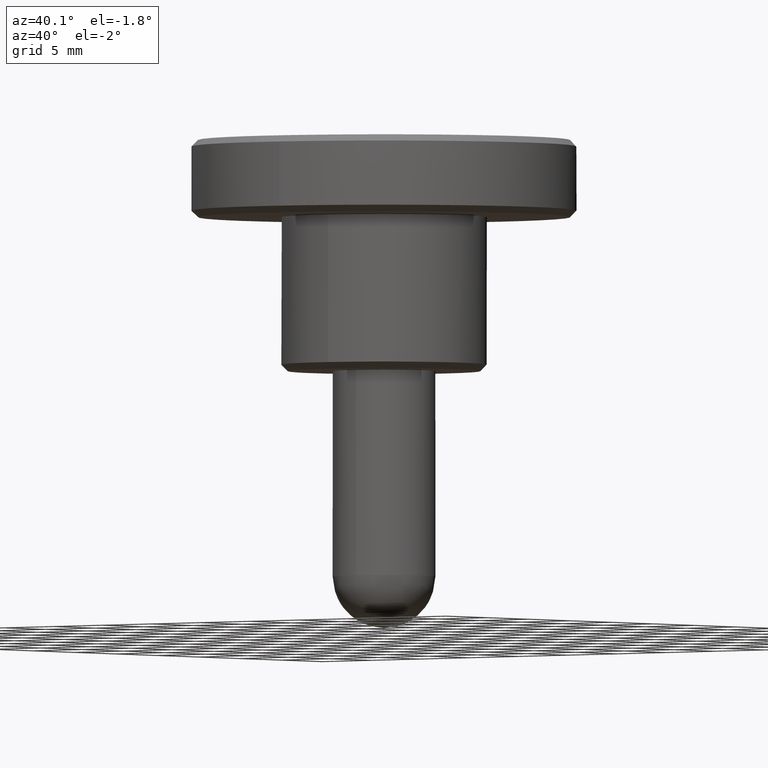
[diagram: clean part render]
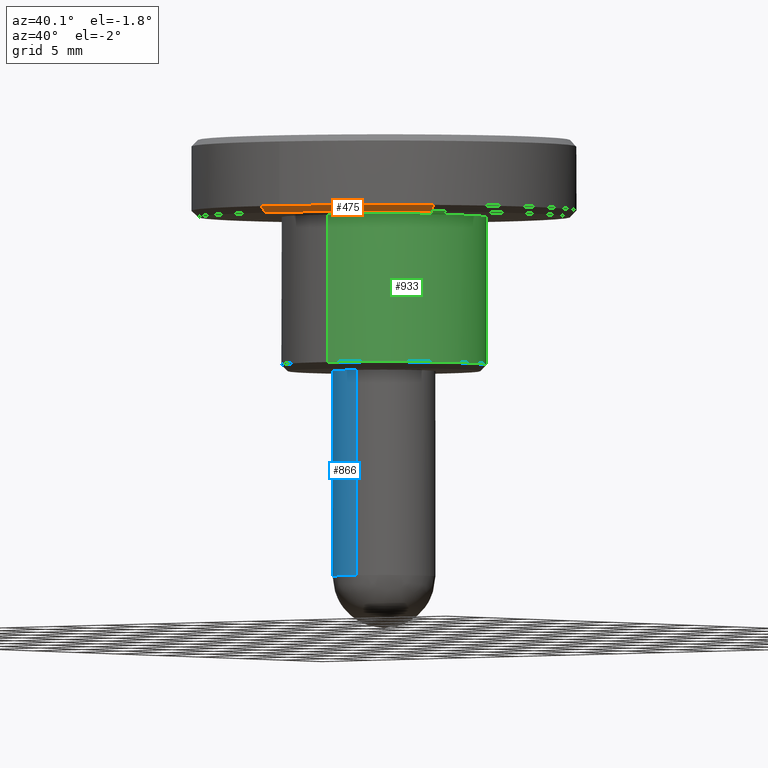
[diagram: same view with three faces highlighted in distinct colors, each labeled with its STEP entity id]
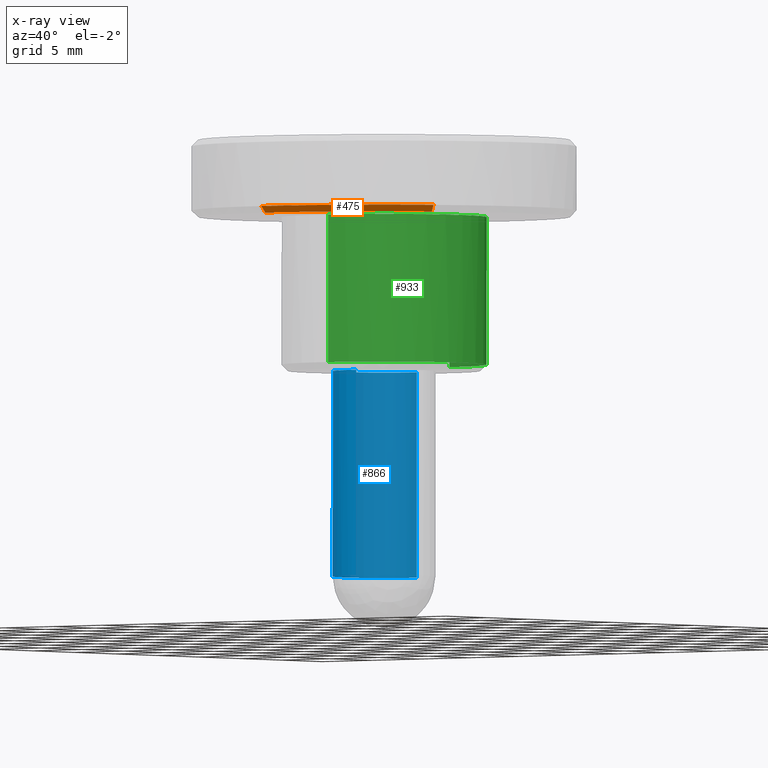
[diagram: x-ray of the same camera — body ghosted, the three highlighted faces saturated]
A machine part, auxiliary view with three faces highlighted in distinct colors.
The next image is the same camera in x-ray (body ghosted, the three faces saturated) — at least one of them is partly hidden behind the body in this view.
Their STEP definitions:

[orange] entity #475 — the highlighted face is a freeform B-spline surface patch.
#288=CARTESIAN_POINT('',(11.873558634304199,-8.322776301075679,12.000000000000229));
#289=VERTEX_POINT('',#288);
#320=CARTESIAN_POINT('',(0.126534764762243,-14.499447884435050,12.000000000004880));
#321=VERTEX_POINT('',#320);
#337=CARTESIAN_POINT('',(0.130898032476117,-14.999428845962649,12.500000000000060));
#338=VERTEX_POINT('',#337);
#339=CARTESIAN_POINT('',(0.126534764762243,-14.499447884435050,12.000000000004880));
#340=CARTESIAN_POINT('',(0.130898032476117,-14.999428845962649,12.500000000000060));
#341=QUASI_UNIFORM_CURVE('',1,(#339,#340),.UNSPECIFIED.,.F.,.U.);
#342=EDGE_CURVE('',#321,#338,#341,.T.);
#393=CARTESIAN_POINT('',(12.282991690659861,-8.609768587319159,12.500000000000201));
#394=VERTEX_POINT('',#393);
#408=CARTESIAN_POINT('',(11.873558634304199,-8.322776301075679,12.000000000000229));
#409=CARTESIAN_POINT('',(12.282991690659861,-8.609768587319159,12.500000000000201));
#410=QUASI_UNIFORM_CURVE('',1,(#408,#409),.UNSPECIFIED.,.F.,.U.);
#411=EDGE_CURVE('',#289,#394,#410,.T.);
#416=CARTESIAN_POINT('',(0.126425683032692,-14.486948360392180,11.987500000000001));
#417=CARTESIAN_POINT('',(7.583127834570551,-14.421874706560637,11.987500000000001));
#418=CARTESIAN_POINT('',(11.863322807898196,-8.315601493915052,11.987500000000006));
#419=CARTESIAN_POINT('',(0.131009841211682,-15.012240858101890,12.512812500000001));
#420=CARTESIAN_POINT('',(7.858089825293472,-14.944807652672184,12.512812500000003));
#421=CARTESIAN_POINT('',(12.293483412731655,-8.617122764650015,12.512812500000011));
#429=(BOUNDED_SURFACE()B_SPLINE_SURFACE(2,1,((#416,#419),(#417,#420),(#418,#421)),.UNSPECIFIED.,.F.,.F.,.U.)B_SPLINE_SURFACE_WITH_KNOTS((3,3),(2,2),(0.0,14.822698393180930),(0.0,1.0),.UNSPECIFIED.)GEOMETRIC_REPRESENTATION_ITEM()RATIONAL_B_SPLINE_SURFACE(((1.0,1.0),(0.824264068711928,0.824264068711928),(0.859411254969543,0.859411254969543)))REPRESENTATION_ITEM('')SURFACE());
#430=CARTESIAN_POINT('',(11.873558634304203,-8.322776301075679,12.000000000000236));
#431=CARTESIAN_POINT('',(7.589670654119141,-14.434318084182454,12.0));
#432=CARTESIAN_POINT('',(0.126534764762243,-14.499447884435048,12.000000000004873));
#440=(BOUNDED_CURVE()B_SPLINE_CURVE(2,(#430,#431,#432),.UNSPECIFIED.,.F.,.U.)B_SPLINE_CURVE_WITH_KNOTS((3,3),(0.098673726202985,0.248460105664144),.UNSPECIFIED.)CURVE()GEOMETRIC_REPRESENTATION_ITEM()RATIONAL_B_SPLINE_CURVE((0.860049271925816,0.823090203820964,0.996414028098394))REPRESENTATION_ITEM(''));
#441=EDGE_CURVE('',#289,#321,#440,.T.);
#442=ORIENTED_EDGE('',*,*,#441,.F.);
#443=ORIENTED_EDGE('',*,*,#411,.T.);
#444=CARTESIAN_POINT('',(1.861909287597829,-14.883994551350780,12.500000000000000));
#445=VERTEX_POINT('',#444);
#446=CARTESIAN_POINT('',(1.861909287597830,-14.883994551350776,12.500000000000000));
#447=CARTESIAN_POINT('',(8.463973537194306,-14.058111103115637,12.500000000000004));
#448=CARTESIAN_POINT('',(12.282991690659852,-8.609768587319159,12.500000000000201));
#456=(BOUNDED_CURVE()B_SPLINE_CURVE(2,(#446,#447,#448),.UNSPECIFIED.,.F.,.U.)B_SPLINE_CURVE_WITH_KNOTS((3,3),(0.271473807238290,0.401326273797027),.UNSPECIFIED.)CURVE()GEOMETRIC_REPRESENTATION_ITEM()RATIONAL_B_SPLINE_CURVE((0.954005666510404,0.828008800873685,0.860049271925822))REPRESENTATION_ITEM(''));
#457=EDGE_CURVE('',#445,#394,#456,.T.);
#458=ORIENTED_EDGE('',*,*,#457,.F.);
#459=CARTESIAN_POINT('',(0.130898032476117,-14.999428845962647,12.500000000000060));
#460=CARTESIAN_POINT('',(0.999746952747555,-14.991846516305150,12.500000000000002));
#461=CARTESIAN_POINT('',(1.861909287597830,-14.883994551350778,12.500000000000002));
#469=(BOUNDED_CURVE()B_SPLINE_CURVE(2,(#459,#460,#461),.UNSPECIFIED.,.F.,.U.)B_SPLINE_CURVE_WITH_KNOTS((3,3),(0.251539894334999,0.271473807238290),.UNSPECIFIED.)CURVE()GEOMETRIC_REPRESENTATION_ITEM()RATIONAL_B_SPLINE_CURVE((0.996414028100378,0.973347698373572,0.954005666510404))REPRESENTATION_ITEM(''));
#470=EDGE_CURVE('',#338,#445,#469,.T.);
#471=ORIENTED_EDGE('',*,*,#470,.F.);
#472=ORIENTED_EDGE('',*,*,#342,.F.);
#473=EDGE_LOOP('',(#442,#443,#458,#471,#472));
#474=FACE_OUTER_BOUND('',#473,.T.);
#475=ADVANCED_FACE('',(#474),#429,.T.);

[blue] entity #866 — the highlighted face is a freeform B-spline surface patch.
#695=CARTESIAN_POINT('',(0.496508679259291,-3.969065271749626,-16.0));
#696=VERTEX_POINT('',#695);
#712=CARTESIAN_POINT('',(-0.034906142013988,3.999847692256505,-16.0));
#713=VERTEX_POINT('',#712);
#729=CARTESIAN_POINT('',(-0.034898830468448,3.999847756050031,-2.914335E-015));
#730=VERTEX_POINT('',#729);
#731=CARTESIAN_POINT('',(-0.034906142013988,3.999847692256505,-16.0));
#732=CARTESIAN_POINT('',(-0.034898830468448,3.999847756050031,-2.914335E-015));
#733=QUASI_UNIFORM_CURVE('',1,(#731,#732),.UNSPECIFIED.,.F.,.U.);
#734=EDGE_CURVE('',#713,#730,#733,.T.);
#753=CARTESIAN_POINT('',(0.496512008340835,-3.969064855299463,-1.160246E-016));
#754=VERTEX_POINT('',#753);
#768=CARTESIAN_POINT('',(0.496508679259291,-3.969065271749626,-16.0));
#769=CARTESIAN_POINT('',(0.496512008340835,-3.969064855299463,-1.160246E-016));
#770=QUASI_UNIFORM_CURVE('',1,(#768,#769),.UNSPECIFIED.,.F.,.U.);
#771=EDGE_CURVE('',#696,#754,#770,.T.);
#776=CARTESIAN_POINT('',(0.023573933277955,4.000358040141973,-16.399999999999999));
#777=CARTESIAN_POINT('',(-0.005577296015719,4.000103641217986,-16.399999999999988));
#778=CARTESIAN_POINT('',(-4.034753834250179,3.964941550263188,-16.399999999999999));
#779=CARTESIAN_POINT('',(-3.999847692256684,-0.034906141993496,-16.399999999999999));
#780=CARTESIAN_POINT('',(-3.964941550263188,-4.034753834250179,-16.399999999999999));
#781=CARTESIAN_POINT('',(0.034906141993496,-3.999847692256684,-16.399999999999999));
#782=CARTESIAN_POINT('',(0.266600635832694,-3.997825725041103,-16.399999999999999));
#783=CARTESIAN_POINT('',(0.527097073006215,-3.965238802454472,-16.400000000000002));
#784=CARTESIAN_POINT('',(0.557846586296708,-3.961392177832475,-16.399999999999999));
#785=CARTESIAN_POINT('',(0.023573933277955,4.000358040141973,0.410000000000000));
#786=CARTESIAN_POINT('',(-0.005577296015719,4.000103641217986,0.410000000000000));
#787=CARTESIAN_POINT('',(-4.034753834250179,3.964941550263188,0.410000000000000));
#788=CARTESIAN_POINT('',(-3.999847692256684,-0.034906141993496,0.410000000000000));
#789=CARTESIAN_POINT('',(-3.964941550263188,-4.034753834250179,0.410000000000000));
#790=CARTESIAN_POINT('',(0.034906141993496,-3.999847692256684,0.410000000000000));
#791=CARTESIAN_POINT('',(0.266600635832694,-3.997825725041103,0.410000000000000));
#792=CARTESIAN_POINT('',(0.527097073006215,-3.965238802454472,0.410000000000000));
#793=CARTESIAN_POINT('',(0.557846586296708,-3.961392177832475,0.410000000000000));
#801=(BOUNDED_SURFACE()B_SPLINE_SURFACE(2,1,((#776,#785),(#777,#786),(#778,#787),(#779,#788),(#780,#789),(#781,#790),(#782,#791),(#783,#792),(#784,#793)),.UNSPECIFIED.,.F.,.F.,.U.)B_SPLINE_SURFACE_WITH_KNOTS((3,1,2,2,1,3),(2,2),(0.0,0.068933744380424,6.696350742349943,13.323767740319459,13.853961100157020,13.922886278251299),(0.0,16.809999999999999),.UNSPECIFIED.)GEOMETRIC_REPRESENTATION_ITEM()RATIONAL_B_SPLINE_SURFACE(((1.006092939762997,1.006092939762997),(1.003046469881499,1.003046469881499),(0.707106781186548,0.707106781186548),(1.0,1.0),(0.707106781186548,0.707106781186548),(1.0,1.0),(0.976568542494924,0.976568542494924),(0.954327401497350,0.954327401497350),(0.951768684804040,0.951768684804040)))REPRESENTATION_ITEM('')SURFACE());
#802=CARTESIAN_POINT('',(-4.0,0.0,-16.0));
#803=VERTEX_POINT('',#802);
#804=CARTESIAN_POINT('',(-4.0,0.0,-16.0));
#805=CARTESIAN_POINT('',(-4.000000000000000,-4.000000000000000,-15.999999999999998));
#806=CARTESIAN_POINT('',(0.0,-4.0,-16.0));
#807=CARTESIAN_POINT('',(0.249218026118825,-4.0,-15.999999999999998));
#808=CARTESIAN_POINT('',(0.496508679259291,-3.969065271749626,-16.000000000000004));
#816=(BOUNDED_CURVE()B_SPLINE_CURVE(2,(#804,#805,#806,#807,#808),.UNSPECIFIED.,.F.,.U.)B_SPLINE_CURVE_WITH_KNOTS((3,2,3),(0.500000000000000,0.750000000000000,0.771473787518632),.UNSPECIFIED.)CURVE()GEOMETRIC_REPRESENTATION_ITEM()RATIONAL_B_SPLINE_CURVE((1.0,0.707106781186548,1.0,0.974841893014207,0.954005704778685))REPRESENTATION_ITEM(''));
#817=EDGE_CURVE('',#803,#696,#816,.T.);
#818=ORIENTED_EDGE('',*,*,#817,.T.);
#819=ORIENTED_EDGE('',*,*,#771,.T.);
#820=CARTESIAN_POINT('',(-4.0,0.0,0.0));
#821=VERTEX_POINT('',#820);
#822=CARTESIAN_POINT('',(0.496512008340835,-3.969064855299463,-1.160246E-016));
#823=CARTESIAN_POINT('',(0.249219710155747,-4.0,0.0));
#824=CARTESIAN_POINT('',(0.0,-4.0,0.0));
#825=CARTESIAN_POINT('',(-4.000000000000000,-4.000000000000000,0.0));
#826=CARTESIAN_POINT('',(-4.0,0.0,0.0));
#834=(BOUNDED_CURVE()B_SPLINE_CURVE(2,(#822,#823,#824,#825,#826),.UNSPECIFIED.,.F.,.U.)B_SPLINE_CURVE_WITH_KNOTS((3,2,3),(0.728526071027470,0.750000000000000,1.0),.UNSPECIFIED.)CURVE()GEOMETRIC_REPRESENTATION_ITEM()RATIONAL_B_SPLINE_CURVE((0.954005430271170,0.974841727290657,1.0,0.707106781186548,1.0))REPRESENTATION_ITEM(''));
#835=EDGE_CURVE('',#754,#821,#834,.T.);
#836=ORIENTED_EDGE('',*,*,#835,.T.);
#837=CARTESIAN_POINT('',(-4.0,0.0,0.0));
#838=CARTESIAN_POINT('',(-4.000000000000000,3.965252090935106,0.0));
#839=CARTESIAN_POINT('',(-0.034898830468448,3.999847756050031,-2.914335E-015));
#847=(BOUNDED_CURVE()B_SPLINE_CURVE(2,(#837,#838,#839),.UNSPECIFIED.,.F.,.U.)B_SPLINE_CURVE_WITH_KNOTS((3,3),(0.0,0.248460427645473),.UNSPECIFIED.)CURVE()GEOMETRIC_REPRESENTATION_ITEM()RATIONAL_B_SPLINE_CURVE((1.0,0.708910502396602,0.996414773254374))REPRESENTATION_ITEM(''));
#848=EDGE_CURVE('',#821,#730,#847,.T.);
#849=ORIENTED_EDGE('',*,*,#848,.T.);
#850=ORIENTED_EDGE('',*,*,#734,.F.);
#851=CARTESIAN_POINT('',(-0.034906142013988,3.999847692256506,-15.999999999999998));
#852=CARTESIAN_POINT('',(-4.0,3.965244842339282,-16.0));
#853=CARTESIAN_POINT('',(-4.0,0.0,-16.0));
#861=(BOUNDED_CURVE()B_SPLINE_CURVE(2,(#851,#852,#853),.UNSPECIFIED.,.F.,.U.)B_SPLINE_CURVE_WITH_KNOTS((3,3),(0.251539894336792,0.500000000000000),.UNSPECIFIED.)CURVE()GEOMETRIC_REPRESENTATION_ITEM()RATIONAL_B_SPLINE_CURVE((0.996414028096229,0.708910879622290,1.0))REPRESENTATION_ITEM(''));
#862=EDGE_CURVE('',#713,#803,#861,.T.);
#863=ORIENTED_EDGE('',*,*,#862,.T.);
#864=EDGE_LOOP('',(#818,#819,#836,#849,#850,#863));
#865=FACE_OUTER_BOUND('',#864,.T.);
#866=ADVANCED_FACE('',(#865),#801,.T.);

[green] entity #933 — the highlighted face is a freeform B-spline surface patch.
#500=CARTESIAN_POINT('',(0.993013492135482,-7.938131027157739,0.499999999999937));
#501=VERTEX_POINT('',#500);
#558=CARTESIAN_POINT('',(-0.069809601396773,7.999695407921285,0.499999999999060));
#559=VERTEX_POINT('',#558);
#565=CARTESIAN_POINT('',(8.0,0.0,0.499999999999945));
#566=VERTEX_POINT('',#565);
#567=CARTESIAN_POINT('',(8.0,0.0,0.499999999999945));
#568=CARTESIAN_POINT('',(8.0,8.0,0.499999999999945));
#569=CARTESIAN_POINT('',(0.0,8.0,0.499999999999945));
#570=CARTESIAN_POINT('',(-0.034905465193904,8.0,0.499999999999945));
#571=CARTESIAN_POINT('',(-0.069809601396773,7.999695407921285,0.499999999999060));
#579=(BOUNDED_CURVE()B_SPLINE_CURVE(2,(#567,#568,#569,#570,#571),.UNSPECIFIED.,.F.,.U.)B_SPLINE_CURVE_WITH_KNOTS((3,2,3),(0.500000000000000,0.750000000000000,0.751539835267872),.UNSPECIFIED.)CURVE()GEOMETRIC_REPRESENTATION_ITEM()RATIONAL_B_SPLINE_CURVE((1.0,0.707106781186548,1.0,0.998195970767801,0.996414164798291))REPRESENTATION_ITEM(''));
#580=EDGE_CURVE('',#566,#559,#579,.T.);
#582=CARTESIAN_POINT('',(0.993013492135482,-7.938131027157739,0.499999999999937));
#583=CARTESIAN_POINT('',(8.0,-7.061598236547475,0.499999999999945));
#584=CARTESIAN_POINT('',(8.0,0.0,0.499999999999945));
#592=(BOUNDED_CURVE()B_SPLINE_CURVE(2,(#582,#583,#584),.UNSPECIFIED.,.F.,.U.)B_SPLINE_CURVE_WITH_KNOTS((3,3),(0.271473705377139,0.500000000000000),.UNSPECIFIED.)CURVE()GEOMETRIC_REPRESENTATION_ITEM()RATIONAL_B_SPLINE_CURVE((0.954005864183848,0.732264791937595,1.0))REPRESENTATION_ITEM(''));
#593=EDGE_CURVE('',#501,#566,#592,.T.);
#867=CARTESIAN_POINT('',(0.993024016638634,-7.938129710604309,0.212499999999943));
#868=CARTESIAN_POINT('',(8.061862644019557,-7.053850065065769,0.212499999999943));
#869=CARTESIAN_POINT('',(7.999695384513368,0.069812283986991,0.212499999999943));
#870=CARTESIAN_POINT('',(7.929883100526377,8.069507668500359,0.212499999999943));
#871=CARTESIAN_POINT('',(-0.069812283986991,7.999695384513368,0.212499999999943));
#872=CARTESIAN_POINT('',(0.993024016638634,-7.938129710604309,12.294687500000002));
#873=CARTESIAN_POINT('',(8.061862644019557,-7.053850065065769,12.294687500000004));
#874=CARTESIAN_POINT('',(7.999695384513368,0.069812283986991,12.294687500000000));
#875=CARTESIAN_POINT('',(7.929883100526377,8.069507668500359,12.294687500000004));
#876=CARTESIAN_POINT('',(-0.069812283986991,7.999695384513368,12.294687500000000));
#884=(BOUNDED_SURFACE()B_SPLINE_SURFACE(2,1,((#867,#872),(#868,#873),(#869,#874),(#870,#875),(#871,#876)),.UNSPECIFIED.,.F.,.F.,.U.)B_SPLINE_SURFACE_WITH_KNOTS((3,2,3),(2,2),(0.0,12.194447276263910,25.449281272202949),(0.0,12.082187500000060),.UNSPECIFIED.)GEOMETRIC_REPRESENTATION_ITEM()RATIONAL_B_SPLINE_SURFACE(((0.956886118190660,0.956886118190660),(0.730538238691624,0.730538238691624),(1.0,1.0),(0.707106781186548,0.707106781186548),(1.0,1.0)))REPRESENTATION_ITEM('')SURFACE());
#885=ORIENTED_EDGE('',*,*,#593,.T.);
#886=ORIENTED_EDGE('',*,*,#580,.T.);
#887=CARTESIAN_POINT('',(-0.069806425569682,7.999695435634711,12.0));
#888=VERTEX_POINT('',#887);
#889=CARTESIAN_POINT('',(-0.069809601396773,7.999695407921285,0.499999999999060));
#890=CARTESIAN_POINT('',(-0.069806425569682,7.999695435634711,12.0));
#891=QUASI_UNIFORM_CURVE('',1,(#889,#890),.UNSPECIFIED.,.F.,.U.);
#892=EDGE_CURVE('',#559,#888,#891,.T.);
#893=ORIENTED_EDGE('',*,*,#892,.T.);
#894=CARTESIAN_POINT('',(8.0,0.0,12.0));
#895=VERTEX_POINT('',#894);
#896=CARTESIAN_POINT('',(-0.069806425569682,7.999695435634711,12.000000000000002));
#897=CARTESIAN_POINT('',(-0.034903877189671,8.000000000000002,11.999999999999998));
#898=CARTESIAN_POINT('',(0.0,8.0,12.0));
#899=CARTESIAN_POINT('',(8.0,8.0,12.0));
#900=CARTESIAN_POINT('',(8.0,0.0,12.0));
#908=(BOUNDED_CURVE()B_SPLINE_CURVE(2,(#896,#897,#898,#899,#900),.UNSPECIFIED.,.F.,.U.)B_SPLINE_CURVE_WITH_KNOTS((3,2,3),(0.248460234659681,0.250000000000000,0.500000000000000),.UNSPECIFIED.)CURVE()GEOMETRIC_REPRESENTATION_ITEM()RATIONAL_B_SPLINE_CURVE((0.996414326630366,0.998196052693027,1.0,0.707106781186548,1.0))REPRESENTATION_ITEM(''));
#909=EDGE_CURVE('',#888,#895,#908,.T.);
#910=ORIENTED_EDGE('',*,*,#909,.T.);
#911=CARTESIAN_POINT('',(0.993021370271963,-7.938130041651879,12.0));
#912=VERTEX_POINT('',#911);
#913=CARTESIAN_POINT('',(8.0,0.0,12.0));
#914=CARTESIAN_POINT('',(8.000000000000002,-7.061591173701135,12.0));
#915=CARTESIAN_POINT('',(0.993021370271963,-7.938130041651879,11.999999999999996));
#923=(BOUNDED_CURVE()B_SPLINE_CURVE(2,(#913,#914,#915),.UNSPECIFIED.,.F.,.U.)B_SPLINE_CURVE_WITH_KNOTS((3,3),(0.500000000000000,0.728526127251480),.UNSPECIFIED.)CURVE()GEOMETRIC_REPRESENTATION_ITEM()RATIONAL_B_SPLINE_CURVE((1.0,0.732264988025365,0.954005539380266))REPRESENTATION_ITEM(''));
#924=EDGE_CURVE('',#895,#912,#923,.T.);
#925=ORIENTED_EDGE('',*,*,#924,.T.);
#926=CARTESIAN_POINT('',(0.993013492135482,-7.938131027157739,0.499999999999937));
#927=CARTESIAN_POINT('',(0.993021370271963,-7.938130041651879,12.0));
#928=QUASI_UNIFORM_CURVE('',1,(#926,#927),.UNSPECIFIED.,.F.,.U.);
#929=EDGE_CURVE('',#501,#912,#928,.T.);
#930=ORIENTED_EDGE('',*,*,#929,.F.);
#931=EDGE_LOOP('',(#885,#886,#893,#910,#925,#930));
#932=FACE_OUTER_BOUND('',#931,.T.);
#933=ADVANCED_FACE('',(#932),#884,.T.);